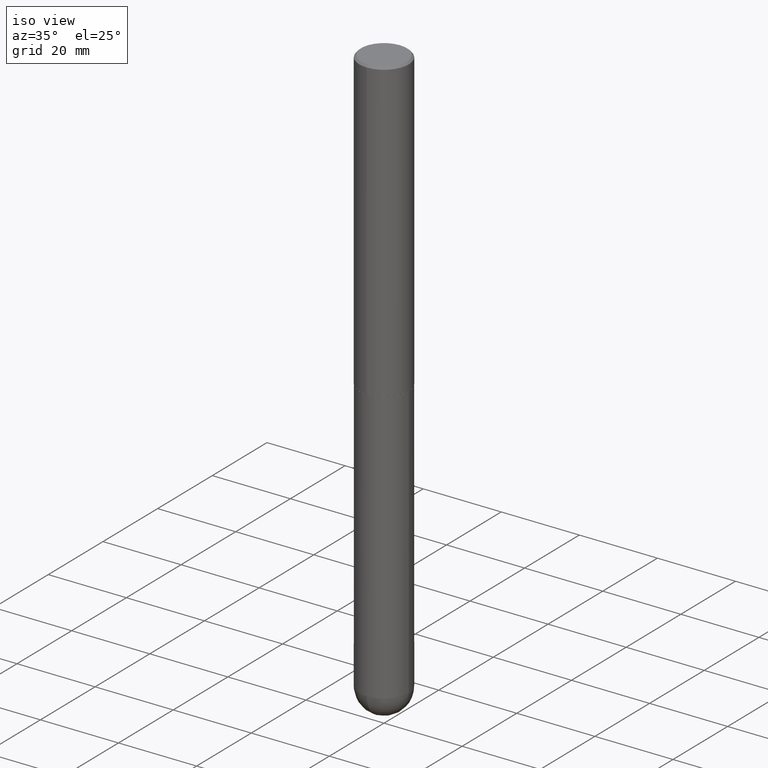
[diagram: clean part render]
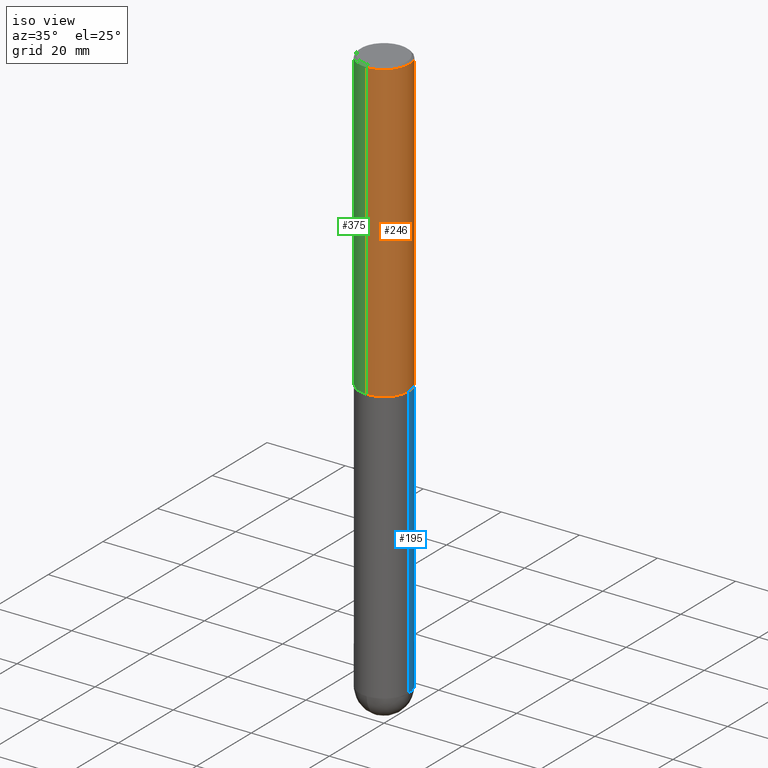
[diagram: same view with three faces highlighted in distinct colors, each labeled with its STEP entity id]
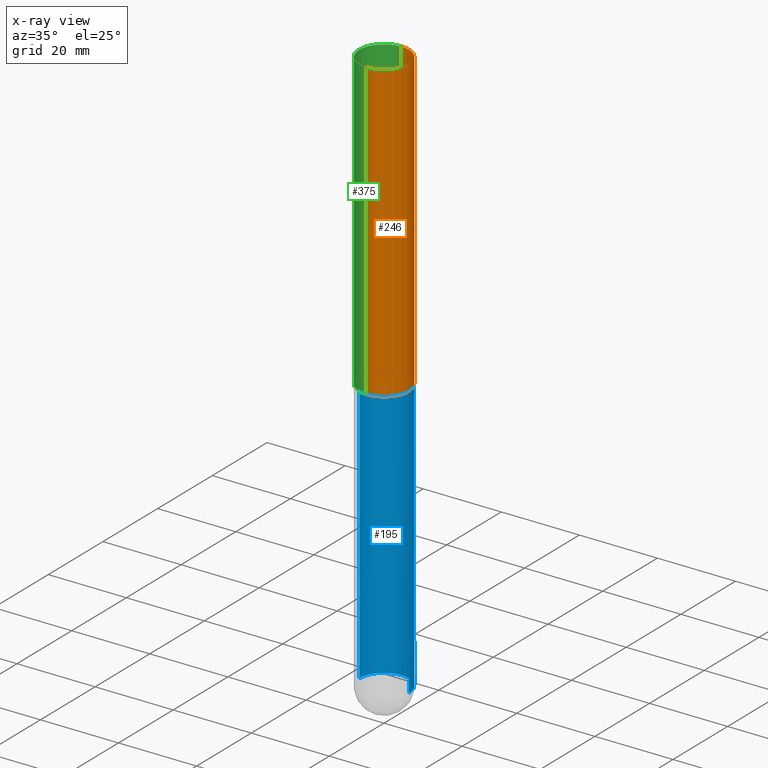
[diagram: x-ray of the same camera — body ghosted, the three highlighted faces saturated]
A machine part, iso view with three faces highlighted in distinct colors.
The next image is the same camera in x-ray (body ghosted, the three faces saturated) — at least one of them is partly hidden behind the body in this view.
Their STEP definitions:

[orange] entity #246 — the highlighted cylindrical surface (edge-blend (fillet) strip) has radius 6.35 mm, axis along (-0, 0, 1).
#7 = VERTEX_POINT ( 'NONE', #409 ) ;
#24 = DIRECTION ( 'NONE',  ( -2.445357092195460350E-29, 3.491641319634726865E-15, 1.000000000000000000 ) ) ;
#31 = AXIS2_PLACEMENT_3D ( 'NONE', #302, #143, #271 ) ;
#44 = DIRECTION ( 'NONE',  ( -2.445357092195460350E-29, 3.491641319634726865E-15, 1.000000000000000000 ) ) ;
#56 = LINE ( 'NONE', #307, #239 ) ;
#76 = CARTESIAN_POINT ( 'NONE',  ( 1.776356839400251254E-15, 0.2500000000000001665, -8.729103299086822093E-16 ) ) ;
#100 = CARTESIAN_POINT ( 'NONE',  ( -1.715124499442882299E-15, -0.2500000000000000555, -0.01999999999999918510 ) ) ;
#134 = EDGE_CURVE ( 'NONE', #7, #312, #56, .T. ) ;
#137 = DIRECTION ( 'NONE',  ( -6.982962677686265922E-15, -1.000000000000000000, 3.483106191921935554E-15 ) ) ;
#143 = DIRECTION ( 'NONE',  ( -2.445357092195460631E-29, 3.491641319634726865E-15, 1.000000000000000000 ) ) ;
#146 = CIRCLE ( 'NONE', #228, 0.2500000000000000000 ) ;
#158 = ORIENTED_EDGE ( 'NONE', *, *, #221, .T. ) ;
#171 = FACE_OUTER_BOUND ( 'NONE', #193, .T. ) ;
#178 = CYLINDRICAL_SURFACE ( 'NONE', #31, 0.2500000000000001665 ) ;
#189 = EDGE_CURVE ( 'NONE', #7, #324, #194, .T. ) ;
#193 = EDGE_LOOP ( 'NONE', ( #243, #158, #292, #226 ) ) ;
#194 = CIRCLE ( 'NONE', #197, 0.2500000000000003331 ) ;
#197 = AXIS2_PLACEMENT_3D ( 'NONE', #202, #366, #205 ) ;
#202 = CARTESIAN_POINT ( 'NONE',  ( 7.333625919494187361E-29, -1.047143231758454677E-14, -2.999000000000000554 ) ) ;
#204 = CARTESIAN_POINT ( 'NONE',  ( 4.890714184390934188E-31, -6.983282639269473353E-17, -0.02000000000000005593 ) ) ;
#205 = DIRECTION ( 'NONE',  ( -6.982962677686265922E-15, -1.000000000000000000, 4.370956789862815627E-15 ) ) ;
#216 = VERTEX_POINT ( 'NONE', #305 ) ;
#221 = EDGE_CURVE ( 'NONE', #324, #216, #331, .T. ) ;
#225 = CARTESIAN_POINT ( 'NONE',  ( 1.776356839400289119E-15, 0.2499999999999898415, -2.999000000000001442 ) ) ;
#226 = ORIENTED_EDGE ( 'NONE', *, *, #134, .F. ) ;
#228 = AXIS2_PLACEMENT_3D ( 'NONE', #204, #328, #137 ) ;
#239 = VECTOR ( 'NONE', #24, 39.37007874015748143 ) ;
#243 = ORIENTED_EDGE ( 'NONE', *, *, #189, .T. ) ;
#246 = ADVANCED_FACE ( 'NONE', ( #171 ), #178, .T. ) ;
#271 = DIRECTION ( 'NONE',  ( -6.982962677686265922E-15, -1.000000000000000000, 3.491641319634726471E-15 ) ) ;
#292 = ORIENTED_EDGE ( 'NONE', *, *, #371, .F. ) ;
#302 = CARTESIAN_POINT ( 'NONE',  ( 0.000000000000000000, 0.000000000000000000, 0.000000000000000000 ) ) ;
#305 = CARTESIAN_POINT ( 'NONE',  ( 1.745740669421566875E-15, 0.2499999999999999167, -0.02000000000000092676 ) ) ;
#307 = CARTESIAN_POINT ( 'NONE',  ( -1.745740669421567664E-15, -0.2500000000000001665, 8.729103299086822093E-16 ) ) ;
#312 = VERTEX_POINT ( 'NONE', #100 ) ;
#324 = VERTEX_POINT ( 'NONE', #225 ) ;
#328 = DIRECTION ( 'NONE',  ( -2.445357092195460631E-29, 3.491641319634726865E-15, 1.000000000000000000 ) ) ;
#331 = LINE ( 'NONE', #76, #397 ) ;
#366 = DIRECTION ( 'NONE',  ( -2.445357092195460631E-29, 3.491641319634726865E-15, 1.000000000000000000 ) ) ;
#371 = EDGE_CURVE ( 'NONE', #312, #216, #146, .T. ) ;
#397 = VECTOR ( 'NONE', #44, 39.37007874015748143 ) ;
#409 = CARTESIAN_POINT ( 'NONE',  ( -1.745740669421495680E-15, -0.2500000000000108247, -2.998999999999999222 ) ) ;

[blue] entity #195 — the highlighted cylindrical surface (edge-blend (fillet) strip) has radius 6.35 mm, axis along (-0, 0, 1).
#2 = CARTESIAN_POINT ( 'NONE',  ( 0.2500000000000000000, -1.702097152686033033E-14, -5.750000000000000888 ) ) ;
#4 = ORIENTED_EDGE ( 'NONE', *, *, #144, .T. ) ;
#17 = CARTESIAN_POINT ( 'NONE',  ( 0.2500000000000000000, -1.222018468595100303E-14, -3.000000000000000444 ) ) ;
#20 = CARTESIAN_POINT ( 'NONE',  ( -0.2500000000000000000, -1.349887401803851318E-14, -3.000000000000000444 ) ) ;
#39 = CARTESIAN_POINT ( 'NONE',  ( -0.2500000000000000000, -1.349887401803851318E-14, -5.750000000000000888 ) ) ;
#45 = VERTEX_POINT ( 'NONE', #20 ) ;
#52 = VECTOR ( 'NONE', #342, 39.37007874015748143 ) ;
#58 = DIRECTION ( 'NONE',  ( 1.000000000000000000, -6.982962677686262766E-15, 0.000000000000000000 ) ) ;
#70 = DIRECTION ( 'NONE',  ( 1.000000000000000000, -6.982962677686262766E-15, 0.000000000000000000 ) ) ;
#75 = FACE_OUTER_BOUND ( 'NONE', #79, .T. ) ;
#78 = CIRCLE ( 'NONE', #364, 0.2500000000000000000 ) ;
#79 = EDGE_LOOP ( 'NONE', ( #279, #386, #118, #296, #4 ) ) ;
#82 = CARTESIAN_POINT ( 'NONE',  ( -0.2500000000000000000, 1.776356839400250465E-15, -1.229733772563726445E-29 ) ) ;
#86 = LINE ( 'NONE', #82, #52 ) ;
#110 = EDGE_CURVE ( 'NONE', #306, #207, #249, .T. ) ;
#114 = DIRECTION ( 'NONE',  ( -2.445468806185136597E-29, 3.491481338843145583E-15, 1.000000000000000000 ) ) ;
#115 = EDGE_CURVE ( 'NONE', #351, #45, #86, .T. ) ;
#116 = CARTESIAN_POINT ( 'NONE',  ( 1.406144563556453767E-28, -2.007601769834809252E-14, -5.750000000000000888 ) ) ;
#118 = ORIENTED_EDGE ( 'NONE', *, *, #344, .F. ) ;
#126 = CIRCLE ( 'NONE', #380, 0.2500000000000000000 ) ;
#144 = EDGE_CURVE ( 'NONE', #306, #173, #348, .T. ) ;
#147 = CARTESIAN_POINT ( 'NONE',  ( 0.000000000000000000, 0.000000000000000000, 0.000000000000000000 ) ) ;
#173 = VERTEX_POINT ( 'NONE', #358 ) ;
#179 = DIRECTION ( 'NONE',  ( 1.000000000000000000, -6.982962677686266711E-15, 4.876176775795935793E-29 ) ) ;
#195 = ADVANCED_FACE ( 'NONE', ( #75 ), #326, .T. ) ;
#207 = VERTEX_POINT ( 'NONE', #17 ) ;
#209 = AXIS2_PLACEMENT_3D ( 'NONE', #147, #329, #179 ) ;
#240 = DIRECTION ( 'NONE',  ( 1.000000000000000000, -6.982962677686262766E-15, 0.000000000000000000 ) ) ;
#241 = DIRECTION ( 'NONE',  ( -2.445468806185136597E-29, 3.491481338843145583E-15, 1.000000000000000000 ) ) ;
#249 = LINE ( 'NONE', #255, #374 ) ;
#255 = CARTESIAN_POINT ( 'NONE',  ( 0.2500000000000000000, -1.745740669421566678E-15, 1.219044193948983948E-29 ) ) ;
#257 = CARTESIAN_POINT ( 'NONE',  ( 7.336406418555409790E-29, -1.047444401652943635E-14, -3.000000000000000444 ) ) ;
#261 = EDGE_CURVE ( 'NONE', #173, #351, #78, .T. ) ;
#279 = ORIENTED_EDGE ( 'NONE', *, *, #261, .T. ) ;
#289 = AXIS2_PLACEMENT_3D ( 'NONE', #116, #241, #240 ) ;
#296 = ORIENTED_EDGE ( 'NONE', *, *, #110, .F. ) ;
#306 = VERTEX_POINT ( 'NONE', #2 ) ;
#325 = DIRECTION ( 'NONE',  ( -2.445468806185136597E-29, 3.491481338843145583E-15, 1.000000000000000000 ) ) ;
#326 = CYLINDRICAL_SURFACE ( 'NONE', #209, 0.2500000000000000000 ) ;
#329 = DIRECTION ( 'NONE',  ( -2.445468806185136597E-29, 3.491481338843145583E-15, 1.000000000000000000 ) ) ;
#342 = DIRECTION ( 'NONE',  ( -2.445468806185136877E-29, 3.491481338843145188E-15, 1.000000000000000000 ) ) ;
#344 = EDGE_CURVE ( 'NONE', #207, #45, #126, .T. ) ;
#348 = CIRCLE ( 'NONE', #289, 0.2500000000000000000 ) ;
#351 = VERTEX_POINT ( 'NONE', #39 ) ;
#358 = CARTESIAN_POINT ( 'NONE',  ( 1.745740669421707884E-15, 0.2499999999999800160, -5.750000000000001776 ) ) ;
#364 = AXIS2_PLACEMENT_3D ( 'NONE', #399, #114, #58 ) ;
#374 = VECTOR ( 'NONE', #403, 39.37007874015748143 ) ;
#380 = AXIS2_PLACEMENT_3D ( 'NONE', #257, #325, #70 ) ;
#386 = ORIENTED_EDGE ( 'NONE', *, *, #115, .T. ) ;
#399 = CARTESIAN_POINT ( 'NONE',  ( 1.406144563556453767E-28, -2.007601769834809252E-14, -5.750000000000000888 ) ) ;
#403 = DIRECTION ( 'NONE',  ( -2.445468806185136877E-29, 3.491481338843145188E-15, 1.000000000000000000 ) ) ;

[green] entity #375 — the highlighted cylindrical surface (edge-blend (fillet) strip) has radius 6.35 mm, axis along (-0, 0, 1).
#7 = VERTEX_POINT ( 'NONE', #409 ) ;
#14 = AXIS2_PLACEMENT_3D ( 'NONE', #208, #181, #77 ) ;
#15 = EDGE_CURVE ( 'NONE', #324, #7, #59, .T. ) ;
#24 = DIRECTION ( 'NONE',  ( -2.445357092195460350E-29, 3.491641319634726865E-15, 1.000000000000000000 ) ) ;
#44 = DIRECTION ( 'NONE',  ( -2.445357092195460350E-29, 3.491641319634726865E-15, 1.000000000000000000 ) ) ;
#56 = LINE ( 'NONE', #307, #239 ) ;
#59 = CIRCLE ( 'NONE', #340, 0.2500000000000003331 ) ;
#76 = CARTESIAN_POINT ( 'NONE',  ( 1.776356839400251254E-15, 0.2500000000000001665, -8.729103299086822093E-16 ) ) ;
#77 = DIRECTION ( 'NONE',  ( -6.982962677686265922E-15, -1.000000000000000000, 3.483106191921935554E-15 ) ) ;
#97 = CARTESIAN_POINT ( 'NONE',  ( 0.000000000000000000, 0.000000000000000000, 0.000000000000000000 ) ) ;
#100 = CARTESIAN_POINT ( 'NONE',  ( -1.715124499442882299E-15, -0.2500000000000000555, -0.01999999999999918510 ) ) ;
#106 = DIRECTION ( 'NONE',  ( -2.445357092195460631E-29, 3.491641319634726865E-15, 1.000000000000000000 ) ) ;
#109 = DIRECTION ( 'NONE',  ( -6.982962677686265922E-15, -1.000000000000000000, 3.491641319634726471E-15 ) ) ;
#120 = DIRECTION ( 'NONE',  ( -6.982962677686265922E-15, -1.000000000000000000, 4.370956789862815627E-15 ) ) ;
#134 = EDGE_CURVE ( 'NONE', #7, #312, #56, .T. ) ;
#138 = AXIS2_PLACEMENT_3D ( 'NONE', #97, #106, #109 ) ;
#181 = DIRECTION ( 'NONE',  ( -2.445357092195460631E-29, 3.491641319634726865E-15, 1.000000000000000000 ) ) ;
#201 = ORIENTED_EDGE ( 'NONE', *, *, #15, .T. ) ;
#208 = CARTESIAN_POINT ( 'NONE',  ( 4.890714184390934188E-31, -6.983282639269473353E-17, -0.02000000000000005593 ) ) ;
#214 = EDGE_CURVE ( 'NONE', #216, #312, #276, .T. ) ;
#216 = VERTEX_POINT ( 'NONE', #305 ) ;
#221 = EDGE_CURVE ( 'NONE', #324, #216, #331, .T. ) ;
#225 = CARTESIAN_POINT ( 'NONE',  ( 1.776356839400289119E-15, 0.2499999999999898415, -2.999000000000001442 ) ) ;
#238 = EDGE_LOOP ( 'NONE', ( #262, #201, #337, #254 ) ) ;
#239 = VECTOR ( 'NONE', #24, 39.37007874015748143 ) ;
#254 = ORIENTED_EDGE ( 'NONE', *, *, #214, .F. ) ;
#262 = ORIENTED_EDGE ( 'NONE', *, *, #221, .F. ) ;
#266 = FACE_OUTER_BOUND ( 'NONE', #238, .T. ) ;
#276 = CIRCLE ( 'NONE', #14, 0.2500000000000000000 ) ;
#284 = DIRECTION ( 'NONE',  ( -2.445357092195460631E-29, 3.491641319634726865E-15, 1.000000000000000000 ) ) ;
#305 = CARTESIAN_POINT ( 'NONE',  ( 1.745740669421566875E-15, 0.2499999999999999167, -0.02000000000000092676 ) ) ;
#307 = CARTESIAN_POINT ( 'NONE',  ( -1.745740669421567664E-15, -0.2500000000000001665, 8.729103299086822093E-16 ) ) ;
#312 = VERTEX_POINT ( 'NONE', #100 ) ;
#324 = VERTEX_POINT ( 'NONE', #225 ) ;
#331 = LINE ( 'NONE', #76, #397 ) ;
#337 = ORIENTED_EDGE ( 'NONE', *, *, #134, .T. ) ;
#340 = AXIS2_PLACEMENT_3D ( 'NONE', #405, #284, #120 ) ;
#375 = ADVANCED_FACE ( 'NONE', ( #266 ), #391, .T. ) ;
#391 = CYLINDRICAL_SURFACE ( 'NONE', #138, 0.2500000000000001665 ) ;
#397 = VECTOR ( 'NONE', #44, 39.37007874015748143 ) ;
#405 = CARTESIAN_POINT ( 'NONE',  ( 7.333625919494187361E-29, -1.047143231758454677E-14, -2.999000000000000554 ) ) ;
#409 = CARTESIAN_POINT ( 'NONE',  ( -1.745740669421495680E-15, -0.2500000000000108247, -2.998999999999999222 ) ) ;